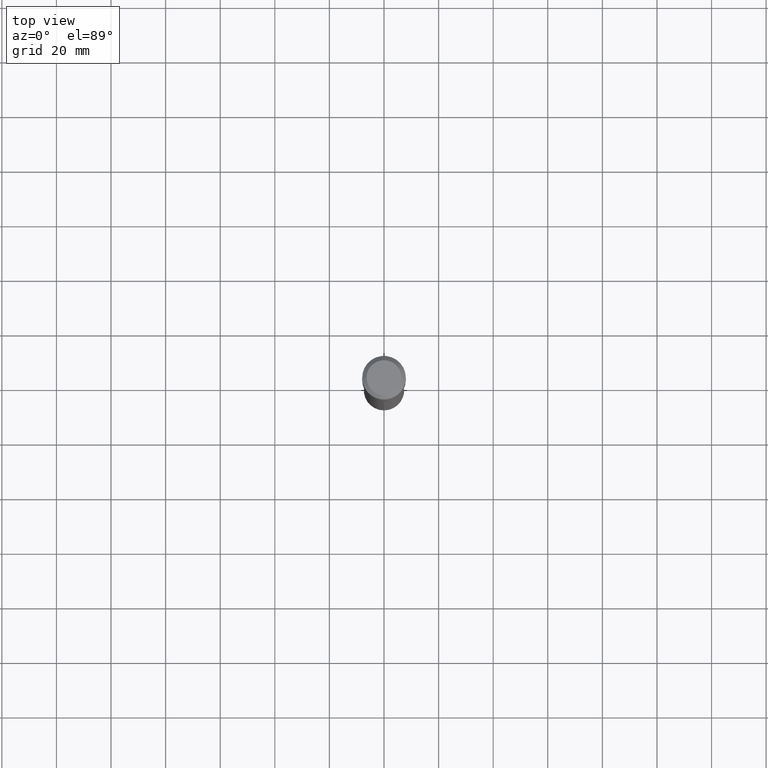
[diagram: clean part render]
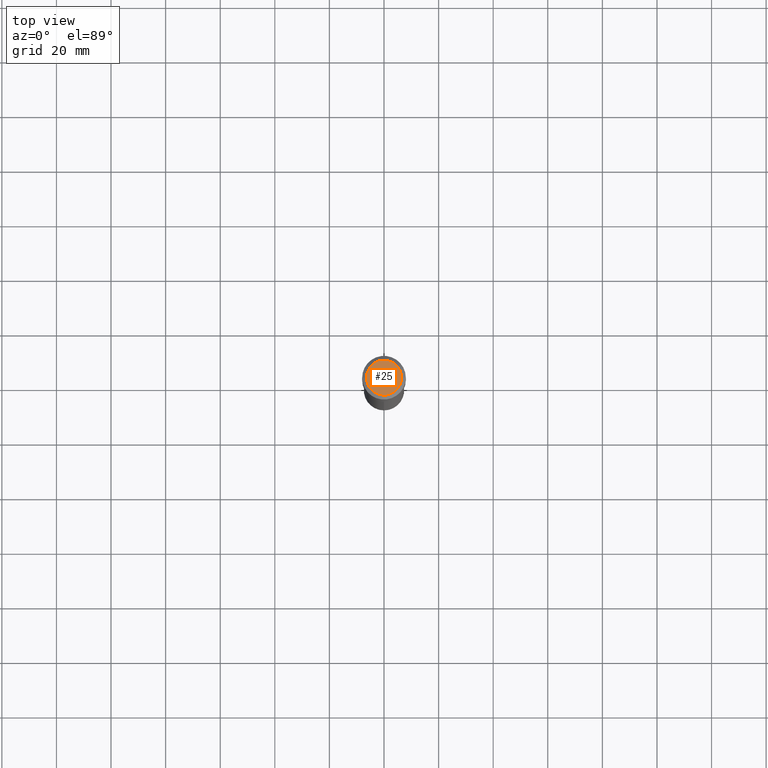
[diagram: same view with one face highlighted and labeled with its STEP entity id]
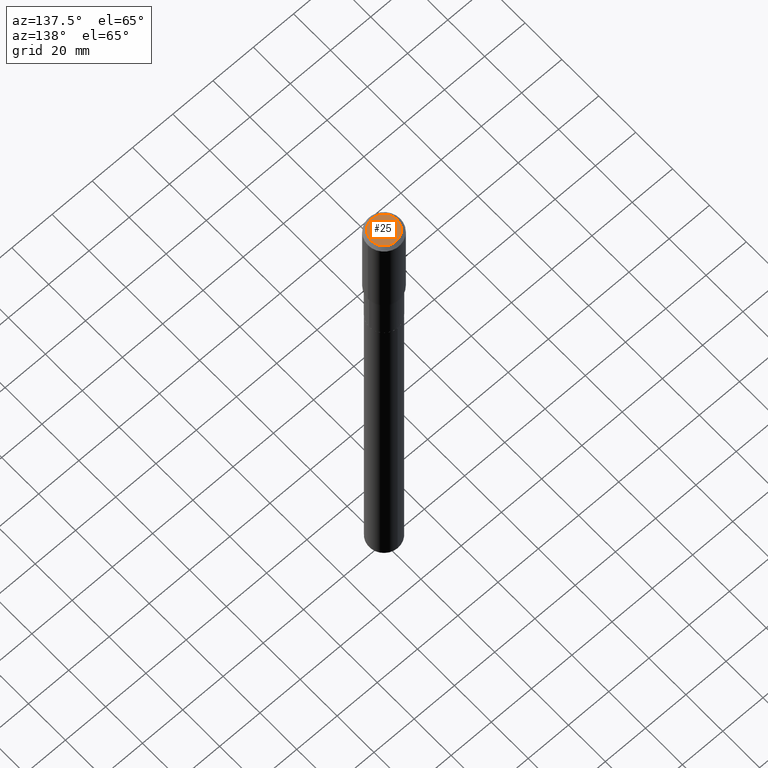
[diagram: same view with one face highlighted and labeled with its STEP entity id]
A machine part, top view. The second image highlights one B-rep face of the part: STEP entity #25.
A second angle (auxiliary view) of the same face is appended — the face is thin or edge-on in the first view.
In plain terms, the highlighted planar face has unit normal (0, -0, -1).
Its self-contained STEP definition (entity closure, byte-faithful):
#25 = ADVANCED_FACE ( 'NONE', ( #186 ), #221, .F. ) ;
#26 = ORIENTED_EDGE ( 'NONE', *, *, #68, .T. ) ;
#31 = DIRECTION ( 'NONE',  ( -2.445468806185136597E-29, 3.491481338843145583E-15, 1.000000000000000000 ) ) ;
#33 = CARTESIAN_POINT ( 'NONE',  ( -9.427742298522569579E-47, 1.346031739168368629E-32, 3.855188123715871501E-18 ) ) ;
#64 = CARTESIAN_POINT ( 'NONE',  ( 0.2519600000000000173, -2.054606664725195058E-15, 3.855188123729206640E-18 ) ) ;
#68 = EDGE_CURVE ( 'NONE', #407, #325, #162, .T. ) ;
#115 = CARTESIAN_POINT ( 'NONE',  ( -0.2519600000000000173, 1.869391481036695286E-15, 3.855188123703182704E-18 ) ) ;
#147 = EDGE_LOOP ( 'NONE', ( #26, #390 ) ) ;
#159 = CARTESIAN_POINT ( 'NONE',  ( -4.713871149261284790E-47, 6.730158695841843144E-33, 1.927594061857935750E-18 ) ) ;
#162 = CIRCLE ( 'NONE', #211, 0.2519600000000000173 ) ;
#186 = FACE_OUTER_BOUND ( 'NONE', #147, .T. ) ;
#211 = AXIS2_PLACEMENT_3D ( 'NONE', #33, #31, #486 ) ;
#221 = PLANE ( 'NONE',  #449 ) ;
#239 = AXIS2_PLACEMENT_3D ( 'NONE', #281, #437, #251 ) ;
#251 = DIRECTION ( 'NONE',  ( 1.000000000000000000, -6.982962677686266711E-15, 4.876115136096691995E-29 ) ) ;
#281 = CARTESIAN_POINT ( 'NONE',  ( -9.427742298522569579E-47, 1.346031739168368629E-32, 3.855188123715871501E-18 ) ) ;
#325 = VERTEX_POINT ( 'NONE', #64 ) ;
#345 = EDGE_CURVE ( 'NONE', #325, #407, #427, .T. ) ;
#385 = DIRECTION ( 'NONE',  ( 2.438088387897960049E-29, -3.491481338843145188E-15, -1.000000000000000000 ) ) ;
#390 = ORIENTED_EDGE ( 'NONE', *, *, #345, .T. ) ;
#407 = VERTEX_POINT ( 'NONE', #115 ) ;
#427 = CIRCLE ( 'NONE', #239, 0.2519600000000000173 ) ;
#437 = DIRECTION ( 'NONE',  ( -2.445468806185136597E-29, 3.491481338843145583E-15, 1.000000000000000000 ) ) ;
#449 = AXIS2_PLACEMENT_3D ( 'NONE', #159, #385, #484 ) ;
#484 = DIRECTION ( 'NONE',  ( -1.000000000000000000, 6.982962677686265922E-15, -4.876176775795935793E-29 ) ) ;
#486 = DIRECTION ( 'NONE',  ( 1.000000000000000000, -6.982962677686266711E-15, 4.876115136096691995E-29 ) ) ;